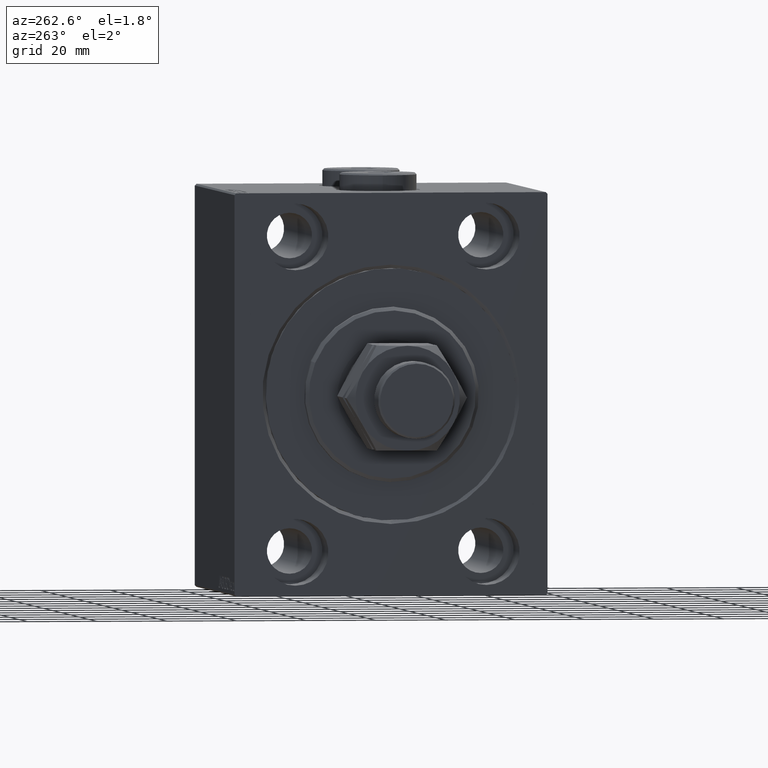
[diagram: clean part render]
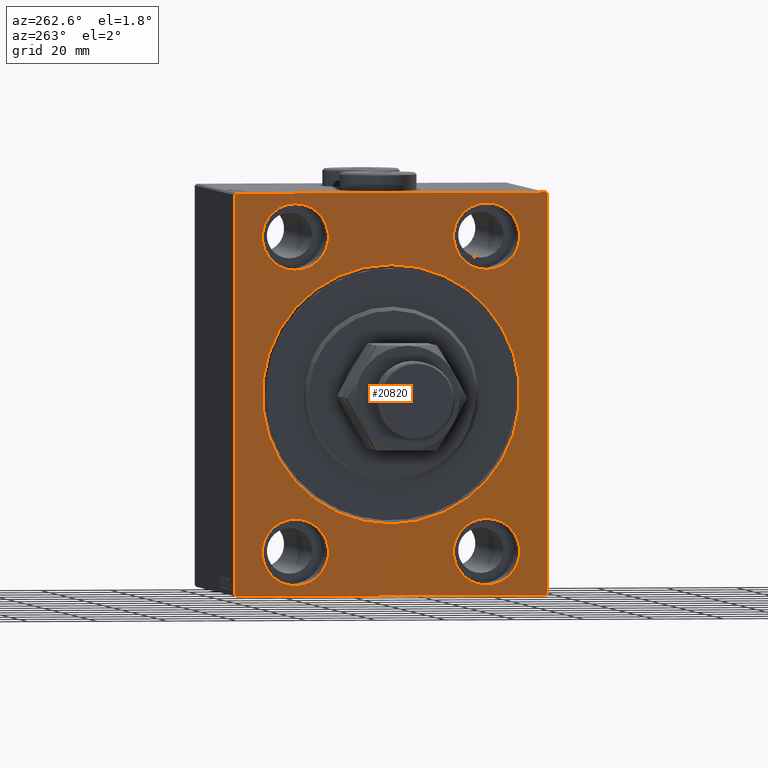
[diagram: same view with one face highlighted and labeled with its STEP entity id]
A machine part, auxiliary view. The second image highlights one B-rep face of the part: STEP entity #20820.
In plain terms, the highlighted planar face has unit normal (1, 0, 0).
Its self-contained STEP definition (entity closure, byte-faithful):
#143 = DIRECTION ( 'NONE',  ( 0.000000000000000000, 1.000000000000000000, 0.000000000000000000 ) ) ;
#280 = EDGE_LOOP ( 'NONE', ( #36680, #13914 ) ) ;
#343 = FACE_OUTER_BOUND ( 'NONE', #22437, .T. ) ;
#416 = VERTEX_POINT ( 'NONE', #6055 ) ;
#909 = VERTEX_POINT ( 'NONE', #28675 ) ;
#978 = AXIS2_PLACEMENT_3D ( 'NONE', #31266, #25079, #39053 ) ;
#1030 = PLANE ( 'NONE',  #33747 ) ;
#1104 = CARTESIAN_POINT ( 'NONE',  ( 0.000000000000000000, 45.00000000000000000, 57.50000000000000711 ) ) ;
#1295 = CIRCLE ( 'NONE', #17952, 36.99999999999999289 ) ;
#2380 = AXIS2_PLACEMENT_3D ( 'NONE', #21882, #32995, #22341 ) ;
#2727 = EDGE_CURVE ( 'NONE', #46680, #10229, #21210, .T. ) ;
#2976 = CIRCLE ( 'NONE', #27171, 9.500000000000001776 ) ;
#3256 = CARTESIAN_POINT ( 'NONE',  ( 0.000000000000000000, -27.49999999999998934, 45.00000000000000711 ) ) ;
#4405 = CARTESIAN_POINT ( 'NONE',  ( 0.000000000000000000, -27.50000000000000000, -54.49999999999998579 ) ) ;
#4510 = CARTESIAN_POINT ( 'NONE',  ( 0.000000000000000000, 0.000000000000000000, 36.99999999999999289 ) ) ;
#4600 = DIRECTION ( 'NONE',  ( 0.000000000000000000, 0.000000000000000000, -1.000000000000000000 ) ) ;
#5220 = CARTESIAN_POINT ( 'NONE',  ( 0.000000000000000000, -45.00000000000000000, 57.00000000000000711 ) ) ;
#5482 = ORIENTED_EDGE ( 'NONE', *, *, #21420, .T. ) ;
#5840 = CIRCLE ( 'NONE', #32301, 9.500000000000001776 ) ;
#5847 = DIRECTION ( 'NONE',  ( 0.000000000000000000, -1.000000000000000000, -1.541976423090495387E-16 ) ) ;
#5960 = VERTEX_POINT ( 'NONE', #7679 ) ;
#6055 = CARTESIAN_POINT ( 'NONE',  ( 0.000000000000000000, -27.49999999999998934, 54.50000000000000711 ) ) ;
#6318 = ORIENTED_EDGE ( 'NONE', *, *, #28517, .F. ) ;
#6407 = EDGE_LOOP ( 'NONE', ( #12095, #26870 ) ) ;
#6561 = VERTEX_POINT ( 'NONE', #30854 ) ;
#6710 = LINE ( 'NONE', #36041, #25199 ) ;
#6809 = CARTESIAN_POINT ( 'NONE',  ( 0.000000000000000000, -27.49999999999998934, 45.00000000000000711 ) ) ;
#6847 = DIRECTION ( 'NONE',  ( 0.000000000000000000, 0.000000000000000000, 1.000000000000000000 ) ) ;
#7040 = CARTESIAN_POINT ( 'NONE',  ( 0.000000000000000000, 0.000000000000000000, 0.000000000000000000 ) ) ;
#7679 = CARTESIAN_POINT ( 'NONE',  ( 0.000000000000000000, -27.50000000000000000, -35.49999999999998579 ) ) ;
#7748 = CARTESIAN_POINT ( 'NONE',  ( 0.000000000000000000, -27.50000000000000000, -44.99999999999998579 ) ) ;
#7867 = ORIENTED_EDGE ( 'NONE', *, *, #2727, .T. ) ;
#8578 = DIRECTION ( 'NONE',  ( -1.000000000000000000, 0.000000000000000000, 0.000000000000000000 ) ) ;
#8927 = EDGE_CURVE ( 'NONE', #23769, #6561, #6710, .T. ) ;
#9099 = CARTESIAN_POINT ( 'NONE',  ( 0.000000000000000000, -45.00000000000000000, 57.00000000000000711 ) ) ;
#9207 = DIRECTION ( 'NONE',  ( -1.000000000000000000, 0.000000000000000000, 0.000000000000000000 ) ) ;
#9737 = CARTESIAN_POINT ( 'NONE',  ( 0.000000000000000000, -27.49999999999998934, 35.50000000000000711 ) ) ;
#10229 = VERTEX_POINT ( 'NONE', #33195 ) ;
#10580 = EDGE_CURVE ( 'NONE', #44876, #39778, #44175, .T. ) ;
#11057 = DIRECTION ( 'NONE',  ( 0.000000000000000000, 0.000000000000000000, 1.000000000000000000 ) ) ;
#11349 = LINE ( 'NONE', #36203, #45920 ) ;
#11514 = DIRECTION ( 'NONE',  ( 0.000000000000000000, 0.000000000000000000, -1.000000000000000000 ) ) ;
#11831 = CARTESIAN_POINT ( 'NONE',  ( 0.000000000000000000, 27.49999999999998934, -44.99999999999998579 ) ) ;
#12092 = VECTOR ( 'NONE', #143, 1000.000000000000000 ) ;
#12095 = ORIENTED_EDGE ( 'NONE', *, *, #36077, .F. ) ;
#12216 = VERTEX_POINT ( 'NONE', #35137 ) ;
#13032 = DIRECTION ( 'NONE',  ( 0.000000000000000000, 0.000000000000000000, 1.000000000000000000 ) ) ;
#13184 = CARTESIAN_POINT ( 'NONE',  ( 0.000000000000000000, 44.50000000000001421, 57.50000000000000711 ) ) ;
#13705 = AXIS2_PLACEMENT_3D ( 'NONE', #44780, #8578, #29882 ) ;
#13914 = ORIENTED_EDGE ( 'NONE', *, *, #15705, .F. ) ;
#14186 = VERTEX_POINT ( 'NONE', #9737 ) ;
#14676 = DIRECTION ( 'NONE',  ( -0.000000000000000000, -0.7071067811865573427, 0.7071067811865378028 ) ) ;
#15474 = CARTESIAN_POINT ( 'NONE',  ( 0.000000000000000000, 0.000000000000000000, 0.000000000000000000 ) ) ;
#15705 = EDGE_CURVE ( 'NONE', #14186, #416, #38158, .T. ) ;
#15987 = CIRCLE ( 'NONE', #2380, 9.500000000000001776 ) ;
#16640 = VERTEX_POINT ( 'NONE', #21767 ) ;
#16641 = AXIS2_PLACEMENT_3D ( 'NONE', #18198, #32859, #6847 ) ;
#16643 = ORIENTED_EDGE ( 'NONE', *, *, #31481, .F. ) ;
#17099 = VECTOR ( 'NONE', #39188, 1000.000000000000114 ) ;
#17206 = VECTOR ( 'NONE', #34636, 1000.000000000000000 ) ;
#17689 = EDGE_LOOP ( 'NONE', ( #36048, #16643 ) ) ;
#17952 = AXIS2_PLACEMENT_3D ( 'NONE', #7040, #37077, #11514 ) ;
#18148 = ORIENTED_EDGE ( 'NONE', *, *, #22463, .T. ) ;
#18198 = CARTESIAN_POINT ( 'NONE',  ( 0.000000000000000000, -27.50000000000000000, -44.99999999999998579 ) ) ;
#18242 = CARTESIAN_POINT ( 'NONE',  ( 0.000000000000000000, 27.49999999999998934, -54.49999999999998579 ) ) ;
#19841 = CARTESIAN_POINT ( 'NONE',  ( 0.000000000000000000, 27.50000000000001066, 45.00000000000000711 ) ) ;
#20548 = EDGE_CURVE ( 'NONE', #5960, #24808, #45077, .T. ) ;
#20820 = ADVANCED_FACE ( 'NONE', ( #22342, #29901, #33452, #28966, #43654, #343 ), #1030, .F. ) ;
#20968 = DIRECTION ( 'NONE',  ( 0.000000000000000000, -1.206764157201257045E-16, 1.000000000000000000 ) ) ;
#21210 = LINE ( 'NONE', #13184, #17099 ) ;
#21415 = EDGE_CURVE ( 'NONE', #416, #14186, #5840, .T. ) ;
#21420 = EDGE_CURVE ( 'NONE', #42195, #16640, #1295, .T. ) ;
#21767 = CARTESIAN_POINT ( 'NONE',  ( 0.000000000000000000, 4.531193156845205215E-15, -36.99999999999999289 ) ) ;
#21882 = CARTESIAN_POINT ( 'NONE',  ( 0.000000000000000000, 27.49999999999998934, -44.99999999999998579 ) ) ;
#21941 = CIRCLE ( 'NONE', #16641, 9.500000000000001776 ) ;
#21942 = DIRECTION ( 'NONE',  ( -1.000000000000000000, 0.000000000000000000, 0.000000000000000000 ) ) ;
#22171 = DIRECTION ( 'NONE',  ( 0.000000000000000000, 0.000000000000000000, 1.000000000000000000 ) ) ;
#22341 = DIRECTION ( 'NONE',  ( 0.000000000000000000, 0.000000000000000000, 1.000000000000000000 ) ) ;
#22342 = FACE_BOUND ( 'NONE', #25595, .T. ) ;
#22423 = CARTESIAN_POINT ( 'NONE',  ( 0.000000000000000000, 27.49999999999998934, -35.49999999999998579 ) ) ;
#22437 = EDGE_LOOP ( 'NONE', ( #46807, #37712, #45589, #7867, #36057, #36844, #6318, #18148 ) ) ;
#22463 = EDGE_CURVE ( 'NONE', #12216, #23639, #11349, .T. ) ;
#23050 = EDGE_CURVE ( 'NONE', #43909, #23639, #23511, .T. ) ;
#23204 = DIRECTION ( 'NONE',  ( -1.000000000000000000, 0.000000000000000000, 0.000000000000000000 ) ) ;
#23409 = VECTOR ( 'NONE', #30873, 1000.000000000000114 ) ;
#23511 = LINE ( 'NONE', #33922, #17206 ) ;
#23639 = VERTEX_POINT ( 'NONE', #42788 ) ;
#23657 = CIRCLE ( 'NONE', #978, 36.99999999999999289 ) ;
#23754 = AXIS2_PLACEMENT_3D ( 'NONE', #11831, #26265, #40697 ) ;
#23769 = VERTEX_POINT ( 'NONE', #25742 ) ;
#24135 = CARTESIAN_POINT ( 'NONE',  ( 0.000000000000000000, -44.50000000000000000, 57.49999999999999289 ) ) ;
#24808 = VERTEX_POINT ( 'NONE', #4405 ) ;
#25079 = DIRECTION ( 'NONE',  ( 1.000000000000000000, 0.000000000000000000, 0.000000000000000000 ) ) ;
#25199 = VECTOR ( 'NONE', #35558, 1000.000000000000000 ) ;
#25595 = EDGE_LOOP ( 'NONE', ( #5482, #34368 ) ) ;
#25683 = VECTOR ( 'NONE', #20968, 1000.000000000000000 ) ;
#25742 = CARTESIAN_POINT ( 'NONE',  ( 0.000000000000000000, 45.00000000000001421, -57.00000000000000711 ) ) ;
#26196 = LINE ( 'NONE', #1104, #30164 ) ;
#26265 = DIRECTION ( 'NONE',  ( -1.000000000000000000, 0.000000000000000000, 0.000000000000000000 ) ) ;
#26870 = ORIENTED_EDGE ( 'NONE', *, *, #10580, .F. ) ;
#27171 = AXIS2_PLACEMENT_3D ( 'NONE', #19841, #9207, #31205 ) ;
#28100 = VERTEX_POINT ( 'NONE', #24135 ) ;
#28458 = EDGE_CURVE ( 'NONE', #23769, #10229, #36114, .T. ) ;
#28517 = EDGE_CURVE ( 'NONE', #12216, #6561, #39646, .T. ) ;
#28675 = CARTESIAN_POINT ( 'NONE',  ( 0.000000000000000000, 27.50000000000001066, 35.50000000000000711 ) ) ;
#28948 = EDGE_CURVE ( 'NONE', #24808, #5960, #21941, .T. ) ;
#28966 = FACE_BOUND ( 'NONE', #17689, .T. ) ;
#29446 = DIRECTION ( 'NONE',  ( 1.000000000000000000, 0.000000000000000000, 0.000000000000000000 ) ) ;
#29882 = DIRECTION ( 'NONE',  ( 0.000000000000000000, 0.000000000000000000, 1.000000000000000000 ) ) ;
#29901 = FACE_BOUND ( 'NONE', #6407, .T. ) ;
#30164 = VECTOR ( 'NONE', #5847, 1000.000000000000000 ) ;
#30854 = CARTESIAN_POINT ( 'NONE',  ( 0.000000000000000000, 44.50000000000000000, -57.50000000000000711 ) ) ;
#30873 = DIRECTION ( 'NONE',  ( -0.000000000000000000, 0.7071067811865376918, 0.7071067811865573427 ) ) ;
#31205 = DIRECTION ( 'NONE',  ( 0.000000000000000000, 0.000000000000000000, 1.000000000000000000 ) ) ;
#31266 = CARTESIAN_POINT ( 'NONE',  ( 0.000000000000000000, 0.000000000000000000, 0.000000000000000000 ) ) ;
#31481 = EDGE_CURVE ( 'NONE', #909, #41391, #2976, .T. ) ;
#31826 = EDGE_CURVE ( 'NONE', #46680, #28100, #26196, .T. ) ;
#32301 = AXIS2_PLACEMENT_3D ( 'NONE', #3256, #39444, #11057 ) ;
#32561 = CARTESIAN_POINT ( 'NONE',  ( 0.000000000000000000, 45.00000000000001421, -57.50000000000000711 ) ) ;
#32639 = CIRCLE ( 'NONE', #13705, 9.500000000000001776 ) ;
#32859 = DIRECTION ( 'NONE',  ( -1.000000000000000000, 0.000000000000000000, 0.000000000000000000 ) ) ;
#32968 = EDGE_CURVE ( 'NONE', #43909, #28100, #34169, .T. ) ;
#32995 = DIRECTION ( 'NONE',  ( -1.000000000000000000, 0.000000000000000000, 0.000000000000000000 ) ) ;
#33195 = CARTESIAN_POINT ( 'NONE',  ( 0.000000000000000000, 45.00000000000000000, 57.00000000000000711 ) ) ;
#33452 = FACE_BOUND ( 'NONE', #280, .T. ) ;
#33670 = CARTESIAN_POINT ( 'NONE',  ( 0.000000000000000000, 44.50000000000001421, 57.50000000000000711 ) ) ;
#33747 = AXIS2_PLACEMENT_3D ( 'NONE', #15474, #29446, #4600 ) ;
#33922 = CARTESIAN_POINT ( 'NONE',  ( 0.000000000000000000, -45.00000000000000000, 57.49999999999999289 ) ) ;
#34169 = LINE ( 'NONE', #9099, #23409 ) ;
#34368 = ORIENTED_EDGE ( 'NONE', *, *, #39424, .T. ) ;
#34636 = DIRECTION ( 'NONE',  ( 0.000000000000000000, 0.000000000000000000, -1.000000000000000000 ) ) ;
#35137 = CARTESIAN_POINT ( 'NONE',  ( 0.000000000000000000, -44.50000000000000000, -57.50000000000000711 ) ) ;
#35558 = DIRECTION ( 'NONE',  ( 0.000000000000000000, -0.7071067811865378028, -0.7071067811865573427 ) ) ;
#36041 = CARTESIAN_POINT ( 'NONE',  ( 0.000000000000000000, 45.00000000000001421, -57.00000000000000711 ) ) ;
#36048 = ORIENTED_EDGE ( 'NONE', *, *, #37767, .F. ) ;
#36057 = ORIENTED_EDGE ( 'NONE', *, *, #28458, .F. ) ;
#36077 = EDGE_CURVE ( 'NONE', #39778, #44876, #15987, .T. ) ;
#36114 = LINE ( 'NONE', #32561, #25683 ) ;
#36203 = CARTESIAN_POINT ( 'NONE',  ( 0.000000000000000000, -44.50000000000000000, -57.50000000000000711 ) ) ;
#36641 = CARTESIAN_POINT ( 'NONE',  ( 0.000000000000000000, 27.50000000000001066, 54.50000000000000711 ) ) ;
#36680 = ORIENTED_EDGE ( 'NONE', *, *, #21415, .F. ) ;
#36792 = AXIS2_PLACEMENT_3D ( 'NONE', #7748, #21942, #22171 ) ;
#36844 = ORIENTED_EDGE ( 'NONE', *, *, #8927, .T. ) ;
#37077 = DIRECTION ( 'NONE',  ( 1.000000000000000000, 0.000000000000000000, 0.000000000000000000 ) ) ;
#37712 = ORIENTED_EDGE ( 'NONE', *, *, #32968, .T. ) ;
#37767 = EDGE_CURVE ( 'NONE', #41391, #909, #32639, .T. ) ;
#38158 = CIRCLE ( 'NONE', #46494, 9.500000000000001776 ) ;
#38998 = ORIENTED_EDGE ( 'NONE', *, *, #20548, .F. ) ;
#39053 = DIRECTION ( 'NONE',  ( 0.000000000000000000, 0.000000000000000000, -1.000000000000000000 ) ) ;
#39188 = DIRECTION ( 'NONE',  ( -0.000000000000000000, 0.7071067811865573427, -0.7071067811865376918 ) ) ;
#39424 = EDGE_CURVE ( 'NONE', #16640, #42195, #23657, .T. ) ;
#39444 = DIRECTION ( 'NONE',  ( -1.000000000000000000, 0.000000000000000000, 0.000000000000000000 ) ) ;
#39646 = LINE ( 'NONE', #42977, #12092 ) ;
#39778 = VERTEX_POINT ( 'NONE', #22423 ) ;
#39900 = EDGE_LOOP ( 'NONE', ( #38998, #42655 ) ) ;
#40697 = DIRECTION ( 'NONE',  ( 0.000000000000000000, 0.000000000000000000, 1.000000000000000000 ) ) ;
#41391 = VERTEX_POINT ( 'NONE', #36641 ) ;
#42195 = VERTEX_POINT ( 'NONE', #4510 ) ;
#42655 = ORIENTED_EDGE ( 'NONE', *, *, #28948, .F. ) ;
#42788 = CARTESIAN_POINT ( 'NONE',  ( 0.000000000000000000, -45.00000000000000000, -57.00000000000002132 ) ) ;
#42977 = CARTESIAN_POINT ( 'NONE',  ( 0.000000000000000000, -45.00000000000000000, -57.50000000000000711 ) ) ;
#43654 = FACE_BOUND ( 'NONE', #39900, .T. ) ;
#43909 = VERTEX_POINT ( 'NONE', #5220 ) ;
#44175 = CIRCLE ( 'NONE', #23754, 9.500000000000001776 ) ;
#44780 = CARTESIAN_POINT ( 'NONE',  ( 0.000000000000000000, 27.50000000000001066, 45.00000000000000711 ) ) ;
#44876 = VERTEX_POINT ( 'NONE', #18242 ) ;
#45077 = CIRCLE ( 'NONE', #36792, 9.500000000000001776 ) ;
#45589 = ORIENTED_EDGE ( 'NONE', *, *, #31826, .F. ) ;
#45920 = VECTOR ( 'NONE', #14676, 1000.000000000000000 ) ;
#46494 = AXIS2_PLACEMENT_3D ( 'NONE', #6809, #23204, #13032 ) ;
#46680 = VERTEX_POINT ( 'NONE', #33670 ) ;
#46807 = ORIENTED_EDGE ( 'NONE', *, *, #23050, .F. ) ;